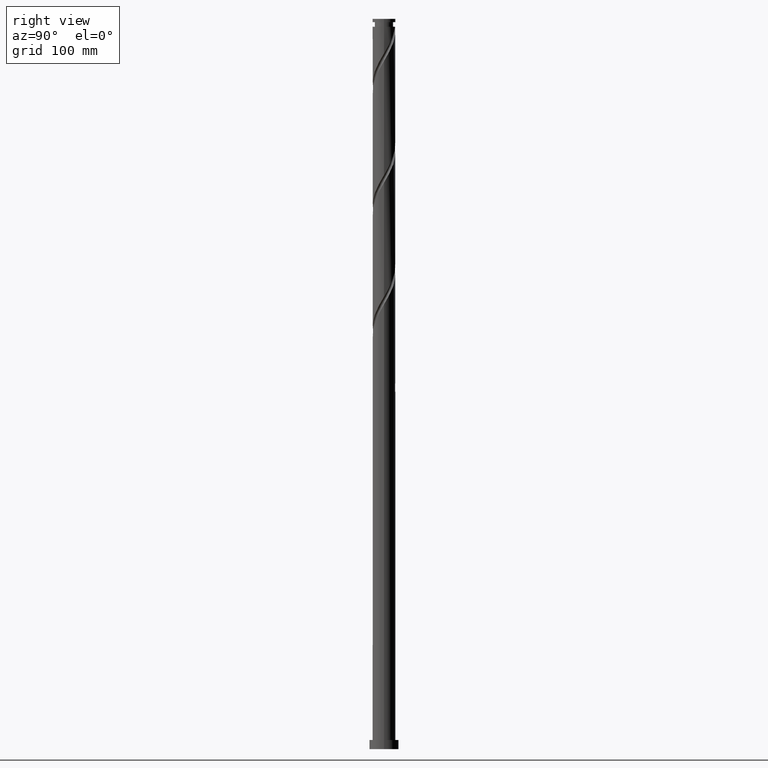
[diagram: clean part render]
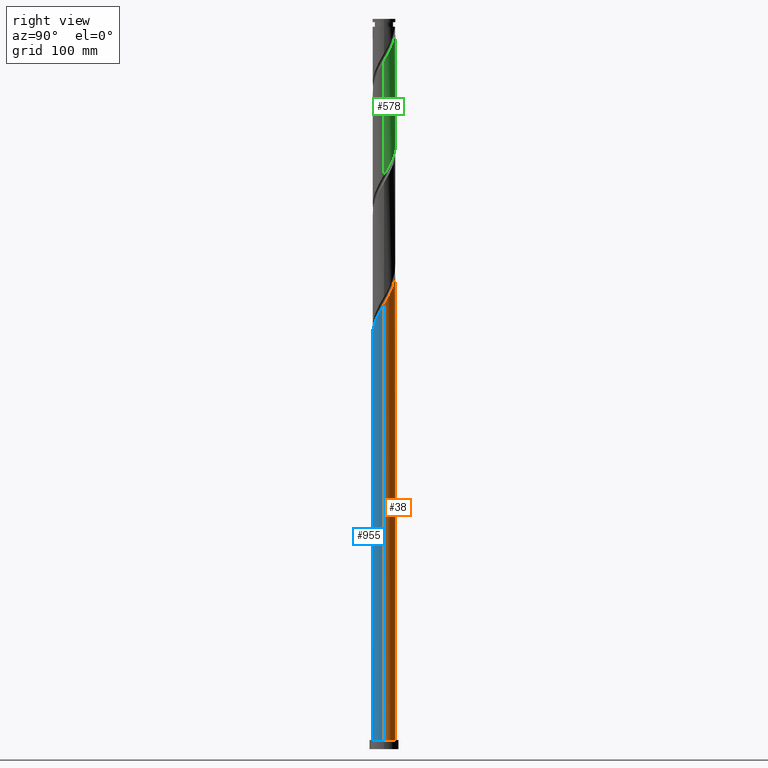
[diagram: same view with three faces highlighted in distinct colors, each labeled with its STEP entity id]
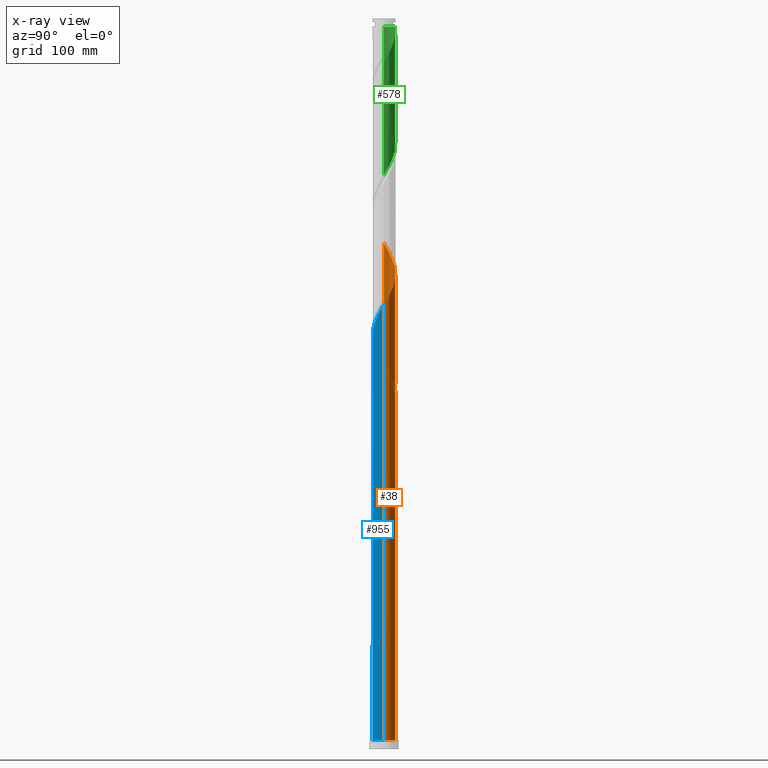
[diagram: x-ray of the same camera — body ghosted, the three highlighted faces saturated]
A machine part, right view with three faces highlighted in distinct colors.
The next image is the same camera in x-ray (body ghosted, the three faces saturated) — at least one of them is partly hidden behind the body in this view.
Their STEP definitions:

[orange] entity #38 — the highlighted cylindrical surface (edge-blend (fillet) strip) has radius 12.5 mm, axis along (-0, -0, -1).
#11 = CARTESIAN_POINT ( 'NONE',  ( 10.81552197002329763, 6.351954325404538082, 498.4268132737504402 ) ) ;
#38 = ADVANCED_FACE ( 'NONE', ( #799 ), #281, .T. ) ;
#52 = CARTESIAN_POINT ( 'NONE',  ( -11.23317305332023963, 5.580202719457611593, 410.7075150281363562 ) ) ;
#66 = EDGE_LOOP ( 'NONE', ( #1879, #779, #1131, #1332, #884, #1167, #101, #1785 ) ) ;
#79 = EDGE_CURVE ( 'NONE', #227, #789, #1815, .T. ) ;
#98 = CARTESIAN_POINT ( 'NONE',  ( -5.561143498045096223, 11.19480607219932011, 405.4443571333995919 ) ) ;
#101 = ORIENTED_EDGE ( 'NONE', *, *, #110, .F. ) ;
#110 = EDGE_CURVE ( 'NONE', #224, #789, #111, .T. ) ;
#111 =( BOUNDED_CURVE ( )  B_SPLINE_CURVE ( 2, ( #1496, #820, #1952, #1009, #633, #1922, #282, #590, #2062, #1345, #1698, #1358, #1890, #112, #98, #638, #477, #2093, #1215, #1763, #863, #1913, #1773 ),
 .UNSPECIFIED., .F., .T. ) 
 B_SPLINE_CURVE_WITH_KNOTS ( ( 3, 2, 2, 2, 2, 2, 2, 2, 2, 2, 2, 3 ),
 ( 0.9295295809515955465, 0.9342105263157894912, 0.9407894736842105088, 0.9473684210526315264, 0.9539473684210526550, 0.9605263157894736725, 0.9671052631578946901, 0.9736842105263158187, 0.9802631578947368363, 0.9868421052631578538, 0.9934210526315789824, 1.000000000000000000 ),
 .UNSPECIFIED. ) 
 CURVE ( )  GEOMETRIC_REPRESENTATION_ITEM ( )  RATIONAL_B_SPLINE_CURVE ( ( 0.9078162034606065411, 0.9068816855934138665, 0.9090909090909354839, 0.9059859027333625470, 0.9090909090909354839, 0.9059859027333625470, 0.9090909090909354839, 0.9059859027333625470, 0.9090909090909354839, 0.9059859027333625470, 0.9090909090909354839, 0.9059859027333625470, 0.9090909090909354839, 0.9059859027333625470, 0.9090909090909354839, 0.9059859027333625470, 0.9090909090909354839, 0.9059859027333625470, 0.9090909090909354839, 0.9059859027333625470, 0.9090909090909354839, 0.9059859027333625470, 0.9090909090909354839 ) ) 
 REPRESENTATION_ITEM ( '' )  );
#112 = CARTESIAN_POINT ( 'NONE',  ( -6.488771576365718552, 10.73399658402358092, 407.1987430983119225 ) ) ;
#119 = CARTESIAN_POINT ( 'NONE',  ( -9.487067962851774894, 8.139136408012332069, 538.7776904667329063 ) ) ;
#179 = LINE ( 'NONE', #370, #1905 ) ;
#205 = CARTESIAN_POINT ( 'NONE',  ( 12.50000000000001421, -6.419346399518662645E-15, 487.1573372133125304 ) ) ;
#211 = CARTESIAN_POINT ( 'NONE',  ( -2.487468592766559183, 12.25000000000001421, 391.4092694141013453 ) ) ;
#224 = VERTEX_POINT ( 'NONE', #780 ) ;
#227 = VERTEX_POINT ( 'NONE', #1390 ) ;
#250 = EDGE_CURVE ( 'NONE', #1052, #1152, #1002, .T. ) ;
#251 = CARTESIAN_POINT ( 'NONE',  ( -12.50000000000001421, -3.084272014280362778E-14, 420.4906705466459584 ) ) ;
#258 = CARTESIAN_POINT ( 'NONE',  ( -3.502532532788455555, 12.04388247588129524, 393.1636553790135622 ) ) ;
#281 = CYLINDRICAL_SURFACE ( 'NONE', #443, 12.50000000000000000 ) ;
#282 = CARTESIAN_POINT ( 'NONE',  ( -11.26451581851405770, 5.418549932818424786, 419.4794448526980091 ) ) ;
#306 = DIRECTION ( 'NONE',  ( 0.000000000000000000, 1.000000000000000000, -3.108624468950438313E-14 ) ) ;
#318 = DIRECTION ( 'NONE',  ( -4.930380657631319580E-30, -3.330669073875467728E-14, -1.000000000000000000 ) ) ;
#370 = CARTESIAN_POINT ( 'NONE',  ( 12.50000000000000000, 1.530808498934191127E-15, 800.0000000000000000 ) ) ;
#376 = CARTESIAN_POINT ( 'NONE',  ( -12.21742800420675756, 2.642811563851073853, 549.3040062562065486 ) ) ;
#377 = CARTESIAN_POINT ( 'NONE',  ( -12.50000000000000000, 0.000000000000000000, 10.00000000000000000 ) ) ;
#411 = CARTESIAN_POINT ( 'NONE',  ( 11.71350966700485685, 4.485145540232315042, 494.9180413439259496 ) ) ;
#412 = CARTESIAN_POINT ( 'NONE',  ( 12.50000000000001421, -6.419346399518662645E-15, 487.1573372133125304 ) ) ;
#429 = CARTESIAN_POINT ( 'NONE',  ( 0.000000000000000000, 0.000000000000000000, 800.0000000000000000 ) ) ;
#443 = AXIS2_PLACEMENT_3D ( 'NONE', #429, #1379, #810 ) ;
#448 = CARTESIAN_POINT ( 'NONE',  ( 2.651869041106374336, 12.25929972816162028, 515.9706729228734048 ) ) ;
#471 = CARTESIAN_POINT ( 'NONE',  ( 6.488771576365735427, 10.73399658402359158, 508.9531290632240825 ) ) ;
#477 = CARTESIAN_POINT ( 'NONE',  ( -3.642692230415416343, 11.95745764426833446, 401.9355852035751013 ) ) ;
#552 = CARTESIAN_POINT ( 'NONE',  ( 8.167030959368803522, 9.519582162300693540, 505.4443571333995919 ) ) ;
#581 = CARTESIAN_POINT ( 'NONE',  ( 12.50000000000001599, 0.7362330219179014090, 488.4078643274976912 ) ) ;
#590 = CARTESIAN_POINT ( 'NONE',  ( -10.81552197002327631, 6.351954325404532753, 417.7250588877856785 ) ) ;
#594 = CARTESIAN_POINT ( 'NONE',  ( 12.00274651105807422, 3.490569608428351067, 493.1636553790136759 ) ) ;
#615 = CARTESIAN_POINT ( 'NONE',  ( -7.223397906210958119, 10.25404124843610632, 400.1811992386627708 ) ) ;
#626 = CARTESIAN_POINT ( 'NONE',  ( -12.43641761389966227, 1.630446616350346600, 417.7250588877855648 ) ) ;
#633 = CARTESIAN_POINT ( 'NONE',  ( -12.00274651105806001, 3.490569608428349291, 422.9882167825224428 ) ) ;
#635 = VERTEX_POINT ( 'NONE', #377 ) ;
#638 = CARTESIAN_POINT ( 'NONE',  ( -4.633515419724471229, 11.65561556037505220, 403.6899711684872614 ) ) ;
#676 = CARTESIAN_POINT ( 'NONE',  ( -10.16149603392872436, 7.353015543879450888, 540.5320764316451232 ) ) ;
#693 = LINE ( 'NONE', #1406, #1644 ) ;
#713 = CARTESIAN_POINT ( 'NONE',  ( -11.61580572391704358, 4.617689615404707126, 545.7952343263820012 ) ) ;
#720 = DIRECTION ( 'NONE',  ( -0.000000000000000000, -0.000000000000000000, -1.000000000000000000 ) ) ;
#779 = ORIENTED_EDGE ( 'NONE', *, *, #1667, .T. ) ;
#780 = CARTESIAN_POINT ( 'NONE',  ( -12.49999999999999645, 3.445546858160272951E-14, 428.9945349482235883 ) ) ;
#789 = VERTEX_POINT ( 'NONE', #1469 ) ;
#792 = CARTESIAN_POINT ( 'NONE',  ( 9.622515027661066256, 8.045498354888833248, 501.9355852035749308 ) ) ;
#799 = FACE_OUTER_BOUND ( 'NONE', #66, .T. ) ;
#804 = CARTESIAN_POINT ( 'NONE',  ( -5.437120455758652326, 11.30312170976022479, 530.0057606421714809 ) ) ;
#810 = DIRECTION ( 'NONE',  ( -1.000000000000000000, 0.000000000000000000, 0.000000000000000000 ) ) ;
#812 = CARTESIAN_POINT ( 'NONE',  ( -9.487067962851774894, 8.139136408012332069, 405.4443571333995919 ) ) ;
#820 = CARTESIAN_POINT ( 'NONE',  ( -12.50000000000000000, 0.7362330219179232804, 427.7440078340383138 ) ) ;
#852 = AXIS2_PLACEMENT_3D ( 'NONE', #1014, #1787, #889 ) ;
#863 = CARTESIAN_POINT ( 'NONE',  ( 0.4372590323955704017, 12.49234984054595188, 394.9180413439260064 ) ) ;
#884 = ORIENTED_EDGE ( 'NONE', *, *, #1834, .F. ) ;
#889 = DIRECTION ( 'NONE',  ( 1.000000000000000000, 0.000000000000000000, 0.000000000000000000 ) ) ;
#911 = CARTESIAN_POINT ( 'NONE',  ( -11.23317305332023963, 5.580202719457611593, 544.0408483614696706 ) ) ;
#937 = CARTESIAN_POINT ( 'NONE',  ( -12.50000000000001421, -3.084272014280362778E-14, 553.8240038799792728 ) ) ;
#947 = CARTESIAN_POINT ( 'NONE',  ( 12.29198335511129514, 2.495993676624377766, 491.4092694141012885 ) ) ;
#953 = CARTESIAN_POINT ( 'NONE',  ( -8.018018898992890442, 9.589649260290663335, 401.9355852035751013 ) ) ;
#968 = CARTESIAN_POINT ( 'NONE',  ( 10.21901849884217839, 7.198726340146690994, 500.1811992386627708 ) ) ;
#969 = CARTESIAN_POINT ( 'NONE',  ( -12.50000000000001421, -3.084272014280362778E-14, 553.8240038799792728 ) ) ;
#985 = CARTESIAN_POINT ( 'NONE',  ( -5.437120455758652326, 11.30312170976022479, 396.6724273088382233 ) ) ;
#988 = CARTESIAN_POINT ( 'NONE',  ( -7.223397906210958119, 10.25404124843610632, 533.5145325719960283 ) ) ;
#1002 =( BOUNDED_CURVE ( )  B_SPLINE_CURVE ( 2, ( #205, #581, #2229, #947, #594, #411, #1866, #11, #968, #792, #2009, #552, #1287, #471, #1543, #1205, #1351, #448, #1005, #2278, #2100, #2300, #2066, #1324, #1880, #804, #1164, #988, #2135, #1739, #119, #676, #1220, #911, #713, #2194, #376, #1447, #2010, #1822, #937 ),
 .UNSPECIFIED., .F., .T. ) 
 B_SPLINE_CURVE_WITH_KNOTS ( ( 3, 2, 2, 2, 2, 2, 2, 2, 2, 2, 2, 2, 2, 2, 2, 2, 2, 2, 2, 2, 3 ),
 ( 0.1795295809515954633, 0.1842105263157894912, 0.1907894736842105088, 0.1973684210526315264, 0.2039473684210526550, 0.2105263157894736725, 0.2171052631578946901, 0.2236842105263158187, 0.2302631578947368363, 0.2368421052631578538, 0.2434210526315789824, 0.2500000000000000000, 0.2565789473684210176, 0.2631578947368421462, 0.2697368421052631637, 0.2763157894736841813, 0.2828947368421053099, 0.2894736842105263275, 0.2960526315789473450, 0.3026315789473684736, 0.3045295809515958796 ),
 .UNSPECIFIED. ) 
 CURVE ( )  GEOMETRIC_REPRESENTATION_ITEM ( )  RATIONAL_B_SPLINE_CURVE ( ( 0.9078162034606127584, 0.9068816855934198617, 0.9090909090909415902, 0.9059859027333685422, 0.9090909090909415902, 0.9059859027333685422, 0.9090909090909415902, 0.9059859027333685422, 0.9090909090909415902, 0.9059859027333685422, 0.9090909090909415902, 0.9059859027333685422, 0.9090909090909415902, 0.9059859027333685422, 0.9090909090909415902, 0.9059859027333685422, 0.9090909090909415902, 0.9059859027333685422, 0.9090909090909415902, 0.9059859027333685422, 0.9090909090909415902, 0.9059859027333685422, 0.9090909090909415902, 0.9059859027333685422, 0.9090909090909415902, 0.9059859027333685422, 0.9090909090909415902, 0.9059859027333685422, 0.9090909090909415902, 0.9059859027333685422, 0.9090909090909415902, 0.9059859027333685422, 0.9090909090909415902, 0.9059859027333685422, 0.9090909090909415902, 0.9059859027333685422, 0.9090909090909415902, 0.9059859027333685422, 0.9090909090909415902, 0.9081951262308900485, 0.9078162034606125363 ) ) 
 REPRESENTATION_ITEM ( '' )  );
#1005 = CARTESIAN_POINT ( 'NONE',  ( 1.624877814529951836, 12.39394094256741319, 517.7250588877855080 ) ) ;
#1009 = CARTESIAN_POINT ( 'NONE',  ( -12.29198335511128093, 2.495993676624379098, 424.7426027474347165 ) ) ;
#1014 = CARTESIAN_POINT ( 'NONE',  ( 0.000000000000000000, 0.000000000000000000, 10.00000000000000000 ) ) ;
#1040 = CIRCLE ( 'NONE', #852, 12.50000000000000000 ) ;
#1047 = VERTEX_POINT ( 'NONE', #251 ) ;
#1052 = VERTEX_POINT ( 'NONE', #412 ) ;
#1087 = CARTESIAN_POINT ( 'NONE',  ( -12.50000000000000000, 0.000000000000000000, 800.0000000000000000 ) ) ;
#1097 = DIRECTION ( 'NONE',  ( -0.000000000000000000, -0.000000000000000000, -1.000000000000000000 ) ) ;
#1131 = ORIENTED_EDGE ( 'NONE', *, *, #1251, .T. ) ;
#1152 = VERTEX_POINT ( 'NONE', #969 ) ;
#1164 = CARTESIAN_POINT ( 'NONE',  ( -6.330259180984804779, 10.77858147909816822, 531.7601466070836977 ) ) ;
#1167 = ORIENTED_EDGE ( 'NONE', *, *, #79, .T. ) ;
#1172 = CARTESIAN_POINT ( 'NONE',  ( -6.330259180984804779, 10.77858147909816822, 398.4268132737504402 ) ) ;
#1205 = CARTESIAN_POINT ( 'NONE',  ( 4.633515419724479223, 11.65561556037507174, 512.4619009930487437 ) ) ;
#1211 = AXIS2_PLACEMENT_3D ( 'NONE', #1951, #318, #306 ) ;
#1215 = CARTESIAN_POINT ( 'NONE',  ( -1.624877814529944731, 12.39394094256739898, 398.4268132737505539 ) ) ;
#1220 = CARTESIAN_POINT ( 'NONE',  ( -10.69733454362448022, 6.466609131668532129, 542.2864623965575674 ) ) ;
#1251 = EDGE_CURVE ( 'NONE', #1562, #635, #1040, .T. ) ;
#1287 = CARTESIAN_POINT ( 'NONE',  ( 7.327901267867273027, 10.12678937316213990, 507.1987430983119225 ) ) ;
#1310 = CARTESIAN_POINT ( 'NONE',  ( -10.16149603392872436, 7.353015543879450888, 407.1987430983119225 ) ) ;
#1313 = EDGE_CURVE ( 'NONE', #1047, #635, #1586, .T. ) ;
#1324 = CARTESIAN_POINT ( 'NONE',  ( -3.502532532788455555, 12.04388247588129524, 526.4969887123469334 ) ) ;
#1331 = CARTESIAN_POINT ( 'NONE',  ( -12.48579069699954758, 0.5958445021311573608, 419.4794448526978954 ) ) ;
#1332 = ORIENTED_EDGE ( 'NONE', *, *, #1313, .F. ) ;
#1345 = CARTESIAN_POINT ( 'NONE',  ( -9.622515027661046716, 8.045498354888831471, 414.2162869579610174 ) ) ;
#1351 = CARTESIAN_POINT ( 'NONE',  ( 3.642692230415432775, 11.95745764426834334, 514.2162869579610742 ) ) ;
#1357 = CARTESIAN_POINT ( 'NONE',  ( -12.50000000000001599, 0.2980916780645564423, 419.9843475282057739 ) ) ;
#1358 = CARTESIAN_POINT ( 'NONE',  ( -8.167030959368789311, 9.519582162300682882, 410.7075150281364131 ) ) ;
#1379 = DIRECTION ( 'NONE',  ( -0.000000000000000000, -0.000000000000000000, -1.000000000000000000 ) ) ;
#1390 = CARTESIAN_POINT ( 'NONE',  ( -2.487468592766559183, 12.25000000000001421, 391.4092694141013453 ) ) ;
#1406 = CARTESIAN_POINT ( 'NONE',  ( -12.50000000000000000, 0.000000000000000000, 800.0000000000000000 ) ) ;
#1447 = CARTESIAN_POINT ( 'NONE',  ( -12.43641761389966227, 1.630446616350346600, 551.0583922211189929 ) ) ;
#1469 = CARTESIAN_POINT ( 'NONE',  ( 2.487468592766563180, 12.25000000000000000, 391.4092694141013453 ) ) ;
#1496 = CARTESIAN_POINT ( 'NONE',  ( -12.49999999999999645, 3.445546858160273582E-14, 428.9945349482236452 ) ) ;
#1516 = CARTESIAN_POINT ( 'NONE',  ( -8.812639891774825429, 8.925257272145215026, 403.6899711684872614 ) ) ;
#1539 = CARTESIAN_POINT ( 'NONE',  ( -10.69733454362448022, 6.466609131668532129, 408.9531290632241394 ) ) ;
#1543 = CARTESIAN_POINT ( 'NONE',  ( 5.561143498045108657, 11.19480607219933255, 510.7075150281364699 ) ) ;
#1562 = VERTEX_POINT ( 'NONE', #2180 ) ;
#1586 = LINE ( 'NONE', #1087, #1832 ) ;
#1644 = VECTOR ( 'NONE', #2283, 1000.000000000000000 ) ;
#1667 = EDGE_CURVE ( 'NONE', #1052, #1562, #179, .T. ) ;
#1686 = CARTESIAN_POINT ( 'NONE',  ( -4.469826494273553052, 11.67350209282075824, 394.9180413439258928 ) ) ;
#1698 = CARTESIAN_POINT ( 'NONE',  ( -8.894772993514918014, 8.782540258594758953, 412.4619009930488005 ) ) ;
#1724 =( BOUNDED_CURVE ( )  B_SPLINE_CURVE ( 2, ( #211, #258, #1686, #985, #1172, #615, #953, #1516, #812, #1310, #1539, #52, #2051, #2238, #2042, #626, #1331, #1357, #2061 ),
 .UNSPECIFIED., .F., .T. ) 
 B_SPLINE_CURVE_WITH_KNOTS ( ( 3, 2, 2, 2, 2, 2, 2, 2, 2, 3 ),
 ( 0.000000000000000000, 0.006578947368421018439, 0.01315789473684214617, 0.01973684210526316374, 0.02631578947368417784, 0.03289473684210530990, 0.03947368421052632748, 0.04605263157894734505, 0.05263157894736847364, 0.05452958095159583796 ),
 .UNSPECIFIED. ) 
 CURVE ( )  GEOMETRIC_REPRESENTATION_ITEM ( )  RATIONAL_B_SPLINE_CURVE ( ( 0.9090909090909415902, 0.9059859027333685422, 0.9090909090909415902, 0.9059859027333685422, 0.9090909090909415902, 0.9059859027333685422, 0.9090909090909415902, 0.9059859027333685422, 0.9090909090909415902, 0.9059859027333685422, 0.9090909090909415902, 0.9059859027333685422, 0.9090909090909415902, 0.9059859027333685422, 0.9090909090909415902, 0.9059859027333685422, 0.9090909090909415902, 0.9081951262308900485, 0.9078162034606125363 ) ) 
 REPRESENTATION_ITEM ( '' )  );
#1739 = CARTESIAN_POINT ( 'NONE',  ( -8.812639891774825429, 8.925257272145215026, 537.0233045018206894 ) ) ;
#1763 = CARTESIAN_POINT ( 'NONE',  ( -0.5978865879535263383, 12.52858215697318300, 396.6724273088382233 ) ) ;
#1773 = CARTESIAN_POINT ( 'NONE',  ( 2.487468592766562736, 12.25000000000000000, 391.4092694141013453 ) ) ;
#1785 = ORIENTED_EDGE ( 'NONE', *, *, #1987, .F. ) ;
#1787 = DIRECTION ( 'NONE',  ( 0.000000000000000000, 0.000000000000000000, 1.000000000000000000 ) ) ;
#1815 = CIRCLE ( 'NONE', #1211, 12.50000000000000000 ) ;
#1822 = CARTESIAN_POINT ( 'NONE',  ( -12.50000000000001599, 0.2980916780645498920, 553.3176808615392019 ) ) ;
#1832 = VECTOR ( 'NONE', #720, 1000.000000000000000 ) ;
#1834 = EDGE_CURVE ( 'NONE', #227, #1047, #1724, .T. ) ;
#1866 = CARTESIAN_POINT ( 'NONE',  ( 11.26451581851407724, 5.418549932818425674, 496.6724273088382802 ) ) ;
#1879 = ORIENTED_EDGE ( 'NONE', *, *, #250, .F. ) ;
#1880 = CARTESIAN_POINT ( 'NONE',  ( -4.469826494273553052, 11.67350209282075824, 528.2513746772592640 ) ) ;
#1890 = CARTESIAN_POINT ( 'NONE',  ( -7.327901267867254376, 10.12678937316213101, 408.9531290632241962 ) ) ;
#1905 = VECTOR ( 'NONE', #1097, 1000.000000000000000 ) ;
#1913 = CARTESIAN_POINT ( 'NONE',  ( 1.472404652744667475, 12.45611752411871898, 393.1636553790136759 ) ) ;
#1922 = CARTESIAN_POINT ( 'NONE',  ( -11.71350966700483731, 4.485145540232317707, 421.2338308176102259 ) ) ;
#1951 = CARTESIAN_POINT ( 'NONE',  ( 0.000000000000000000, 0.000000000000000000, 391.4092694141018001 ) ) ;
#1952 = CARTESIAN_POINT ( 'NONE',  ( -12.41357356760535069, 1.467375644356207154, 426.4969887123471040 ) ) ;
#1987 = EDGE_CURVE ( 'NONE', #1152, #224, #693, .T. ) ;
#2009 = CARTESIAN_POINT ( 'NONE',  ( 8.894772993514934001, 8.782540258594764282, 503.6899711684873751 ) ) ;
#2010 = CARTESIAN_POINT ( 'NONE',  ( -12.48579069699954758, 0.5958445021311573608, 552.8127781860312098 ) ) ;
#2042 = CARTESIAN_POINT ( 'NONE',  ( -12.21742800420675756, 2.642811563851073853, 415.9706729228732911 ) ) ;
#2051 = CARTESIAN_POINT ( 'NONE',  ( -11.61580572391704358, 4.617689615404707126, 412.4619009930488005 ) ) ;
#2061 = CARTESIAN_POINT ( 'NONE',  ( -12.50000000000001421, -3.084272014280362778E-14, 420.4906705466459584 ) ) ;
#2062 = CARTESIAN_POINT ( 'NONE',  ( -10.21901849884216240, 7.198726340146682112, 415.9706729228734616 ) ) ;
#2066 = CARTESIAN_POINT ( 'NONE',  ( -2.487468592766559183, 12.25000000000001599, 524.7426027474347165 ) ) ;
#2093 = CARTESIAN_POINT ( 'NONE',  ( -2.651869041106362346, 12.25929972816160607, 400.1811992386627708 ) ) ;
#2100 = CARTESIAN_POINT ( 'NONE',  ( -0.4372590323955601876, 12.49234984054596787, 521.2338308176100554 ) ) ;
#2135 = CARTESIAN_POINT ( 'NONE',  ( -8.018018898992890442, 9.589649260290663335, 535.2689185369083589 ) ) ;
#2180 = CARTESIAN_POINT ( 'NONE',  ( 12.50000000000000000, 1.530808498934191127E-15, 10.00000000000000000 ) ) ;
#2194 = CARTESIAN_POINT ( 'NONE',  ( -11.99843839451384930, 3.655176511351802660, 547.5496202912942181 ) ) ;
#2229 = CARTESIAN_POINT ( 'NONE',  ( 12.41357356760536668, 1.467375644356201381, 489.6548834491891284 ) ) ;
#2238 = CARTESIAN_POINT ( 'NONE',  ( -11.99843839451384930, 3.655176511351802660, 414.2162869579609605 ) ) ;
#2278 = CARTESIAN_POINT ( 'NONE',  ( 0.5978865879535303351, 12.52858215697320077, 519.4794448526978385 ) ) ;
#2283 = DIRECTION ( 'NONE',  ( -0.000000000000000000, -0.000000000000000000, -1.000000000000000000 ) ) ;
#2300 = CARTESIAN_POINT ( 'NONE',  ( -1.472404652744661924, 12.45611752411873674, 522.9882167825223860 ) ) ;

[blue] entity #955 — the highlighted cylindrical surface (edge-blend (fillet) strip) has radius 12.5 mm, axis along (-0, -0, -1).
#34 = ORIENTED_EDGE ( 'NONE', *, *, #1313, .T. ) ;
#81 = CARTESIAN_POINT ( 'NONE',  ( -11.71350966700485330, -4.485145540232320371, 428.2513746772592071 ) ) ;
#179 = LINE ( 'NONE', #370, #1905 ) ;
#251 = CARTESIAN_POINT ( 'NONE',  ( -12.50000000000001421, -3.084272014280362778E-14, 420.4906705466459584 ) ) ;
#254 = CARTESIAN_POINT ( 'NONE',  ( -12.29198335511129514, -2.495993676624378654, 424.7426027474346597 ) ) ;
#316 = CARTESIAN_POINT ( 'NONE',  ( 4.469826494273553052, -11.67350209282075824, 461.5847080105925215 ) ) ;
#370 = CARTESIAN_POINT ( 'NONE',  ( 12.50000000000000000, 1.530808498934191127E-15, 800.0000000000000000 ) ) ;
#377 = CARTESIAN_POINT ( 'NONE',  ( -12.50000000000000000, 0.000000000000000000, 10.00000000000000000 ) ) ;
#405 = CARTESIAN_POINT ( 'NONE',  ( -4.633515419724479223, -11.65561556037507174, 445.7952343263820012 ) ) ;
#412 = CARTESIAN_POINT ( 'NONE',  ( 12.50000000000001421, -6.419346399518662645E-15, 487.1573372133125304 ) ) ;
#422 = ORIENTED_EDGE ( 'NONE', *, *, #2253, .T. ) ;
#451 = CARTESIAN_POINT ( 'NONE',  ( -6.488771576365729210, -10.73399658402359158, 442.2864623965573969 ) ) ;
#511 = CARTESIAN_POINT ( 'NONE',  ( 11.61580572391704358, -4.617689615404707126, 479.1285676597153724 ) ) ;
#530 = EDGE_CURVE ( 'NONE', #1047, #1052, #1474, .T. ) ;
#568 = FACE_OUTER_BOUND ( 'NONE', #1464, .T. ) ;
#586 = CARTESIAN_POINT ( 'NONE',  ( -5.561143498045107769, -11.19480607219933255, 444.0408483614697843 ) ) ;
#635 = VERTEX_POINT ( 'NONE', #377 ) ;
#642 = ORIENTED_EDGE ( 'NONE', *, *, #530, .F. ) ;
#656 = CIRCLE ( 'NONE', #1949, 12.50000000000000000 ) ;
#663 = CARTESIAN_POINT ( 'NONE',  ( 6.330259180984804779, -10.77858147909816822, 465.0934799404172395 ) ) ;
#703 = CARTESIAN_POINT ( 'NONE',  ( 2.487468592766559183, -12.25000000000001599, 458.0759360807682015 ) ) ;
#720 = DIRECTION ( 'NONE',  ( -0.000000000000000000, -0.000000000000000000, -1.000000000000000000 ) ) ;
#738 = ORIENTED_EDGE ( 'NONE', *, *, #1667, .F. ) ;
#749 = DIRECTION ( 'NONE',  ( 1.000000000000000000, 0.000000000000000000, 0.000000000000000000 ) ) ;
#758 = CYLINDRICAL_SURFACE ( 'NONE', #1714, 12.50000000000000000 ) ;
#808 = CARTESIAN_POINT ( 'NONE',  ( -12.00274651105807422, -3.490569608428349735, 426.4969887123469903 ) ) ;
#818 = CARTESIAN_POINT ( 'NONE',  ( -10.81552197002329585, -6.351954325404538082, 431.7601466070837546 ) ) ;
#844 = CARTESIAN_POINT ( 'NONE',  ( 10.16149603392872258, -7.353015543879452665, 473.8654097649784944 ) ) ;
#857 = CARTESIAN_POINT ( 'NONE',  ( 8.812639891774823653, -8.925257272145218579, 470.3566378351539470 ) ) ;
#955 = ADVANCED_FACE ( 'NONE', ( #568 ), #758, .T. ) ;
#1007 = CARTESIAN_POINT ( 'NONE',  ( -1.624877814529950282, -12.39394094256741319, 451.0583922211190497 ) ) ;
#1032 = CARTESIAN_POINT ( 'NONE',  ( 0.4372590323955675151, -12.49234984054596787, 454.5671641509435403 ) ) ;
#1046 = CARTESIAN_POINT ( 'NONE',  ( 8.018018898992890442, -9.589649260290663335, 468.6022518702417301 ) ) ;
#1047 = VERTEX_POINT ( 'NONE', #251 ) ;
#1052 = VERTEX_POINT ( 'NONE', #412 ) ;
#1087 = CARTESIAN_POINT ( 'NONE',  ( -12.50000000000000000, 0.000000000000000000, 800.0000000000000000 ) ) ;
#1097 = DIRECTION ( 'NONE',  ( -0.000000000000000000, -0.000000000000000000, -1.000000000000000000 ) ) ;
#1157 = CARTESIAN_POINT ( 'NONE',  ( -12.50000000000000711, -0.7362330219179661350, 421.7411976608312330 ) ) ;
#1193 = CARTESIAN_POINT ( 'NONE',  ( 3.502532532788452890, -12.04388247588129524, 459.8303220456801910 ) ) ;
#1234 = CARTESIAN_POINT ( 'NONE',  ( 11.99843839451384575, -3.655176511351809765, 480.8829536246276461 ) ) ;
#1244 = CARTESIAN_POINT ( 'NONE',  ( 12.48579069699954758, -0.5958445021311560286, 486.1461115193645242 ) ) ;
#1301 = DIRECTION ( 'NONE',  ( -1.000000000000000000, 0.000000000000000000, 0.000000000000000000 ) ) ;
#1313 = EDGE_CURVE ( 'NONE', #1047, #635, #1586, .T. ) ;
#1328 = CARTESIAN_POINT ( 'NONE',  ( -12.50000000000001421, -3.084272014280362778E-14, 420.4906705466459584 ) ) ;
#1364 = CARTESIAN_POINT ( 'NONE',  ( -8.167030959368799969, -9.519582162300695316, 438.7776904667329632 ) ) ;
#1377 = CARTESIAN_POINT ( 'NONE',  ( 12.43641761389966227, -1.630446616350347044, 484.3917255544521936 ) ) ;
#1392 = CARTESIAN_POINT ( 'NONE',  ( -2.651869041106372560, -12.25929972816161850, 449.3040062562066623 ) ) ;
#1428 = CARTESIAN_POINT ( 'NONE',  ( -3.642692230415424337, -11.95745764426834690, 447.5496202912943318 ) ) ;
#1464 = EDGE_LOOP ( 'NONE', ( #738, #642, #34, #422 ) ) ;
#1474 =( BOUNDED_CURVE ( )  B_SPLINE_CURVE ( 2, ( #1328, #1157, #1500, #254, #808, #81, #1534, #818, #2078, #1545, #2268, #1364, #2088, #451, #586, #405, #1428, #1392, #1007, #1566, #1032, #2152, #703, #1193, #316, #2330, #663, #2140, #1046, #857, #1726, #844, #2280, #2290, #511, #1234, #2114, #1377, #1244, #1919, #1977 ),
 .UNSPECIFIED., .F., .T. ) 
 B_SPLINE_CURVE_WITH_KNOTS ( ( 3, 2, 2, 2, 2, 2, 2, 2, 2, 2, 2, 2, 2, 2, 2, 2, 2, 2, 2, 2, 3 ),
 ( 0.05452958095159583796, 0.05921052631578949121, 0.06578947368421050879, 0.07236842105263152636, 0.07894736842105265495, 0.08552631578947367252, 0.09210526315789469010, 0.09868421052631581869, 0.1052631578947368363, 0.1118421052631578538, 0.1184210526315789824, 0.1250000000000000000, 0.1315789473684210176, 0.1381578947368421462, 0.1447368421052631637, 0.1513157894736841813, 0.1578947368421053099, 0.1644736842105263275, 0.1710526315789473450, 0.1776315789473684736, 0.1795295809515954633 ),
 .UNSPECIFIED. ) 
 CURVE ( )  GEOMETRIC_REPRESENTATION_ITEM ( )  RATIONAL_B_SPLINE_CURVE ( ( 0.9078162034606125363, 0.9068816855934199728, 0.9090909090909415902, 0.9059859027333685422, 0.9090909090909415902, 0.9059859027333685422, 0.9090909090909415902, 0.9059859027333685422, 0.9090909090909415902, 0.9059859027333685422, 0.9090909090909415902, 0.9059859027333685422, 0.9090909090909415902, 0.9059859027333685422, 0.9090909090909415902, 0.9059859027333685422, 0.9090909090909415902, 0.9059859027333685422, 0.9090909090909415902, 0.9059859027333685422, 0.9090909090909415902, 0.9059859027333685422, 0.9090909090909415902, 0.9059859027333685422, 0.9090909090909415902, 0.9059859027333685422, 0.9090909090909415902, 0.9059859027333685422, 0.9090909090909415902, 0.9059859027333685422, 0.9090909090909415902, 0.9059859027333685422, 0.9090909090909415902, 0.9059859027333685422, 0.9090909090909415902, 0.9059859027333685422, 0.9090909090909415902, 0.9059859027333685422, 0.9090909090909415902, 0.9081951262308902706, 0.9078162034606127584 ) ) 
 REPRESENTATION_ITEM ( '' )  );
#1500 = CARTESIAN_POINT ( 'NONE',  ( -12.41357356760536668, -1.467375644356205155, 422.9882167825224428 ) ) ;
#1534 = CARTESIAN_POINT ( 'NONE',  ( -11.26451581851407546, -5.418549932818430115, 430.0057606421714240 ) ) ;
#1545 = CARTESIAN_POINT ( 'NONE',  ( -9.622515027661060927, -8.045498354888838577, 435.2689185369084157 ) ) ;
#1562 = VERTEX_POINT ( 'NONE', #2180 ) ;
#1566 = CARTESIAN_POINT ( 'NONE',  ( -0.5978865879535343320, -12.52858215697320077, 452.8127781860312098 ) ) ;
#1586 = LINE ( 'NONE', #1087, #1832 ) ;
#1667 = EDGE_CURVE ( 'NONE', #1052, #1562, #179, .T. ) ;
#1714 = AXIS2_PLACEMENT_3D ( 'NONE', #1790, #1823, #1301 ) ;
#1726 = CARTESIAN_POINT ( 'NONE',  ( 9.487067962851774894, -8.139136408012335622, 472.1110238000663912 ) ) ;
#1790 = CARTESIAN_POINT ( 'NONE',  ( 0.000000000000000000, 0.000000000000000000, 800.0000000000000000 ) ) ;
#1823 = DIRECTION ( 'NONE',  ( -0.000000000000000000, -0.000000000000000000, -1.000000000000000000 ) ) ;
#1826 = CARTESIAN_POINT ( 'NONE',  ( 0.000000000000000000, 0.000000000000000000, 10.00000000000000000 ) ) ;
#1832 = VECTOR ( 'NONE', #720, 1000.000000000000000 ) ;
#1905 = VECTOR ( 'NONE', #1097, 1000.000000000000000 ) ;
#1919 = CARTESIAN_POINT ( 'NONE',  ( 12.50000000000001421, -0.2980916780646162279, 486.6510141948723458 ) ) ;
#1949 = AXIS2_PLACEMENT_3D ( 'NONE', #1826, #2165, #749 ) ;
#1977 = CARTESIAN_POINT ( 'NONE',  ( 12.50000000000001421, -6.419346399518662645E-15, 487.1573372133125304 ) ) ;
#2078 = CARTESIAN_POINT ( 'NONE',  ( -10.21901849884218016, -7.198726340146689218, 433.5145325719960852 ) ) ;
#2088 = CARTESIAN_POINT ( 'NONE',  ( -7.327901267867267698, -10.12678937316214522, 440.5320764316453506 ) ) ;
#2114 = CARTESIAN_POINT ( 'NONE',  ( 12.21742800420675579, -2.642811563851077850, 482.6373395895400336 ) ) ;
#2140 = CARTESIAN_POINT ( 'NONE',  ( 7.223397906210958119, -10.25404124843610632, 466.8478659053294564 ) ) ;
#2152 = CARTESIAN_POINT ( 'NONE',  ( 1.472404652744663478, -12.45611752411873674, 456.3215501158556435 ) ) ;
#2165 = DIRECTION ( 'NONE',  ( 0.000000000000000000, 0.000000000000000000, 1.000000000000000000 ) ) ;
#2180 = CARTESIAN_POINT ( 'NONE',  ( 12.50000000000000000, 1.530808498934191127E-15, 10.00000000000000000 ) ) ;
#2253 = EDGE_CURVE ( 'NONE', #635, #1562, #656, .T. ) ;
#2268 = CARTESIAN_POINT ( 'NONE',  ( -8.894772993514934001, -8.782540258594766058, 437.0233045018207463 ) ) ;
#2280 = CARTESIAN_POINT ( 'NONE',  ( 10.69733454362448022, -6.466609131668537458, 475.6197957298908250 ) ) ;
#2290 = CARTESIAN_POINT ( 'NONE',  ( 11.23317305332023786, -5.580202719457613370, 477.3741816948030419 ) ) ;
#2330 = CARTESIAN_POINT ( 'NONE',  ( 5.437120455758649662, -11.30312170976022479, 463.3390939755049089 ) ) ;

[green] entity #578 — the highlighted cylindrical surface (edge-blend (fillet) strip) has radius 12.5 mm, axis along (-0, -0, -1).
#2 = VECTOR ( 'NONE', #235, 1000.000000000000000 ) ;
#14 = CARTESIAN_POINT ( 'NONE',  ( 12.50000000000001421, 5.971485022808058898E-15, 753.8240038799792728 ) ) ;
#19 = CARTESIAN_POINT ( 'NONE',  ( -8.894772993514918014, 8.782540258594758953, 679.1285676597154861 ) ) ;
#41 = AXIS2_PLACEMENT_3D ( 'NONE', #1970, #668, #1050 ) ;
#44 = DIRECTION ( 'NONE',  ( -0.000000000000000000, -0.000000000000000000, -1.000000000000000000 ) ) ;
#49 = CARTESIAN_POINT ( 'NONE',  ( 11.99843839451383509, 3.655176511351786228, 635.2689185369085862 ) ) ;
#56 = CARTESIAN_POINT ( 'NONE',  ( -12.50000000000000000, 0.000000000000000000, 800.0000000000000000 ) ) ;
#60 = CARTESIAN_POINT ( 'NONE',  ( 11.61580572391703114, 4.617689615404693804, 637.0233045018208031 ) ) ;
#70 = CARTESIAN_POINT ( 'NONE',  ( 10.69733454362447134, 6.466609131668515253, 640.5320764316452369 ) ) ;
#131 = CARTESIAN_POINT ( 'NONE',  ( 11.26451581851407724, 5.418549932818425674, 763.3390939755048521 ) ) ;
#153 = CIRCLE ( 'NONE', #41, 12.49999999999991829 ) ;
#162 = CARTESIAN_POINT ( 'NONE',  ( 0.000000000000000000, 0.000000000000000000, 800.0000000000000000 ) ) ;
#212 = EDGE_CURVE ( 'NONE', #1163, #1080, #1068, .T. ) ;
#228 = CARTESIAN_POINT ( 'NONE',  ( -12.50000000000000000, 1.197282747073023809E-14, 695.6612016148903876 ) ) ;
#232 = CARTESIAN_POINT ( 'NONE',  ( 3.502532532788457775, 12.04388247588127570, 656.3215501158558709 ) ) ;
#235 = DIRECTION ( 'NONE',  ( -0.000000000000000000, -0.000000000000000000, -1.000000000000000000 ) ) ;
#244 = CARTESIAN_POINT ( 'NONE',  ( 7.223397906210956343, 10.25404124843609033, 649.3040062562065486 ) ) ;
#246 = CARTESIAN_POINT ( 'NONE',  ( -10.21901849884216240, 7.198726340146682112, 682.6373395895400336 ) ) ;
#266 = CARTESIAN_POINT ( 'NONE',  ( 12.48579069699953159, 0.5958445021311489231, 630.0057606421718219 ) ) ;
#274 = CARTESIAN_POINT ( 'NONE',  ( -12.50000000000000000, 1.197282747073023809E-14, 695.6612016148903876 ) ) ;
#296 = CARTESIAN_POINT ( 'NONE',  ( 12.29198335511129514, 2.495993676624377766, 758.0759360807678604 ) ) ;
#320 = CARTESIAN_POINT ( 'NONE',  ( 5.561143498045108657, 11.19480607219933255, 777.3741816948031556 ) ) ;
#340 = FACE_OUTER_BOUND ( 'NONE', #745, .T. ) ;
#361 = DIRECTION ( 'NONE',  ( -1.000000000000000000, 0.000000000000000000, 0.000000000000000000 ) ) ;
#365 = CARTESIAN_POINT ( 'NONE',  ( -11.26451581851405770, 5.418549932818424786, 686.1461115193644673 ) ) ;
#368 = CARTESIAN_POINT ( 'NONE',  ( -9.622515027661046716, 8.045498354888831471, 680.8829536246277030 ) ) ;
#395 = EDGE_CURVE ( 'NONE', #1080, #665, #927, .T. ) ;
#419 = LINE ( 'NONE', #1875, #2 ) ;
#465 = CARTESIAN_POINT ( 'NONE',  ( 12.41357356760536668, 1.467375644356201381, 756.3215501158557572 ) ) ;
#503 = CARTESIAN_POINT ( 'NONE',  ( 6.488771576365735427, 10.73399658402359158, 775.6197957298905976 ) ) ;
#514 = CARTESIAN_POINT ( 'NONE',  ( -2.487468592766557407, 12.24999999999999467, 791.4092694141013453 ) ) ;
#578 = ADVANCED_FACE ( 'NONE', ( #340 ), #1289, .T. ) ;
#599 = CARTESIAN_POINT ( 'NONE',  ( -7.327901267867254376, 10.12678937316213101, 675.6197957298909387 ) ) ;
#610 = CARTESIAN_POINT ( 'NONE',  ( 5.437120455758646997, 11.30312170976020347, 652.8127781860312098 ) ) ;
#631 = CARTESIAN_POINT ( 'NONE',  ( -6.488771576365718552, 10.73399658402358092, 673.8654097649784944 ) ) ;
#657 = ORIENTED_EDGE ( 'NONE', *, *, #395, .F. ) ;
#665 = VERTEX_POINT ( 'NONE', #1458 ) ;
#668 = DIRECTION ( 'NONE',  ( -0.000000000000000000, -0.000000000000000000, -1.000000000000000000 ) ) ;
#698 = ORIENTED_EDGE ( 'NONE', *, *, #1900, .T. ) ;
#745 = EDGE_LOOP ( 'NONE', ( #1963, #698, #657, #1278, #1497 ) ) ;
#757 = VERTEX_POINT ( 'NONE', #14 ) ;
#785 = CARTESIAN_POINT ( 'NONE',  ( -2.651869041106362346, 12.25929972816160607, 666.8478659053295132 ) ) ;
#793 = CARTESIAN_POINT ( 'NONE',  ( -12.49999999999991829, 0.000000000000000000, 791.4092694141013453 ) ) ;
#823 = CARTESIAN_POINT ( 'NONE',  ( 4.633515419724479223, 11.65561556037507174, 779.1285676597153724 ) ) ;
#848 = CARTESIAN_POINT ( 'NONE',  ( -12.00274651105806001, 3.490569608428349291, 689.6548834491893558 ) ) ;
#875 = CARTESIAN_POINT ( 'NONE',  ( 10.81552197002329763, 6.351954325404538082, 765.0934799404172963 ) ) ;
#895 = CARTESIAN_POINT ( 'NONE',  ( -1.472404652744661924, 12.45611752411873674, 789.6548834491890148 ) ) ;
#927 =( BOUNDED_CURVE ( )  B_SPLINE_CURVE ( 2, ( #274, #2109, #1372, #1016, #848, #1571, #365, #2247, #246, #368, #19, #1872, #599, #631, #994, #1318, #982, #785, #1884, #972, #2223, #2245, #1523, #232, #2258, #610, #2070, #244, #1706, #1907, #1895, #1683, #70, #1340, #60, #49, #1513, #1136, #266, #1169, #2058 ),
 .UNSPECIFIED., .F., .F. ) 
 B_SPLINE_CURVE_WITH_KNOTS ( ( 3, 2, 2, 2, 2, 2, 2, 2, 2, 2, 2, 2, 2, 2, 2, 2, 2, 2, 2, 2, 3 ),
 ( 0.4295295809515953800, 0.4342105263157894912, 0.4407894736842105088, 0.4473684210526315819, 0.4539473684210526550, 0.4605263157894736725, 0.4671052631578947456, 0.4736842105263157632, 0.4802631578947368363, 0.4868421052631579093, 0.4934210526315789269, 0.5000000000000000000, 0.5065789473684210176, 0.5131578947368421462, 0.5197368421052631637, 0.5263157894736841813, 0.5328947368421053099, 0.5394736842105263275, 0.5460526315789473450, 0.5526315789473684736, 0.5545295809515954355 ),
 .UNSPECIFIED. ) 
 CURVE ( )  GEOMETRIC_REPRESENTATION_ITEM ( )  RATIONAL_B_SPLINE_CURVE ( ( 0.9078162034606067632, 0.9068816855934138665, 0.9090909090909354839, 0.9059859027333625470, 0.9090909090909354839, 0.9059859027333625470, 0.9090909090909354839, 0.9059859027333625470, 0.9090909090909354839, 0.9059859027333625470, 0.9090909090909354839, 0.9059859027333625470, 0.9090909090909354839, 0.9059859027333625470, 0.9090909090909354839, 0.9059859027333625470, 0.9090909090909354839, 0.9059859027333625470, 0.9090909090909354839, 0.9059859027333625470, 0.9090909090909354839, 0.9059859027333625470, 0.9090909090909354839, 0.9059859027333625470, 0.9090909090909354839, 0.9059859027333625470, 0.9090909090909354839, 0.9059859027333625470, 0.9090909090909354839, 0.9059859027333625470, 0.9090909090909354839, 0.9059859027333625470, 0.9090909090909354839, 0.9059859027333625470, 0.9090909090909354839, 0.9059859027333625470, 0.9090909090909354839, 0.9059859027333625470, 0.9090909090909354839, 0.9081951262308842754, 0.9078162034606067632 ) ) 
 REPRESENTATION_ITEM ( '' )  );
#972 = CARTESIAN_POINT ( 'NONE',  ( -0.5978865879535263383, 12.52858215697318300, 663.3390939755048521 ) ) ;
#982 = CARTESIAN_POINT ( 'NONE',  ( -3.642692230415416343, 11.95745764426833446, 668.6022518702419575 ) ) ;
#994 = CARTESIAN_POINT ( 'NONE',  ( -5.561143498045096223, 11.19480607219932011, 672.1110238000663912 ) ) ;
#1016 = CARTESIAN_POINT ( 'NONE',  ( -12.29198335511128093, 2.495993676624379098, 691.4092694141013453 ) ) ;
#1050 = DIRECTION ( 'NONE',  ( -1.000000000000000000, 0.000000000000000000, 0.000000000000000000 ) ) ;
#1068 = LINE ( 'NONE', #56, #1781 ) ;
#1080 = VERTEX_POINT ( 'NONE', #228 ) ;
#1084 = CARTESIAN_POINT ( 'NONE',  ( -0.4372590323955601876, 12.49234984054596787, 787.9004974842766842 ) ) ;
#1090 = DIRECTION ( 'NONE',  ( -0.000000000000000000, -0.000000000000000000, -1.000000000000000000 ) ) ;
#1136 = CARTESIAN_POINT ( 'NONE',  ( 12.43641761389964628, 1.630446616350339051, 631.7601466070839251 ) ) ;
#1163 = VERTEX_POINT ( 'NONE', #793 ) ;
#1169 = CARTESIAN_POINT ( 'NONE',  ( 12.49999999999999467, 0.2980916780646106212, 629.5008579666638298 ) ) ;
#1237 = CARTESIAN_POINT ( 'NONE',  ( 10.21901849884217839, 7.198726340146690994, 766.8478659053295132 ) ) ;
#1278 = ORIENTED_EDGE ( 'NONE', *, *, #212, .F. ) ;
#1289 = CYLINDRICAL_SURFACE ( 'NONE', #1419, 12.50000000000000000 ) ;
#1318 = CARTESIAN_POINT ( 'NONE',  ( -4.633515419724471229, 11.65561556037505220, 670.3566378351539470 ) ) ;
#1340 = CARTESIAN_POINT ( 'NONE',  ( 11.23317305332022187, 5.580202719457600047, 638.7776904667327926 ) ) ;
#1344 = CARTESIAN_POINT ( 'NONE',  ( -2.487468592766557407, 12.24999999999999467, 791.4092694141013453 ) ) ;
#1368 = CARTESIAN_POINT ( 'NONE',  ( 12.50000000000001421, 5.971485022808058898E-15, 753.8240038799792728 ) ) ;
#1372 = CARTESIAN_POINT ( 'NONE',  ( -12.41357356760535069, 1.467375644356207154, 693.1636553790136759 ) ) ;
#1419 = AXIS2_PLACEMENT_3D ( 'NONE', #162, #1090, #361 ) ;
#1420 = CARTESIAN_POINT ( 'NONE',  ( 8.167030959368803522, 9.519582162300693540, 772.1110238000663912 ) ) ;
#1458 = CARTESIAN_POINT ( 'NONE',  ( 12.50000000000000000, -4.478613767106074545E-15, 628.9945349482237589 ) ) ;
#1497 = ORIENTED_EDGE ( 'NONE', *, *, #1944, .T. ) ;
#1513 = CARTESIAN_POINT ( 'NONE',  ( 12.21742800420674335, 2.642811563851068080, 633.5145325719962557 ) ) ;
#1523 = CARTESIAN_POINT ( 'NONE',  ( 2.487468592766562736, 12.25000000000000000, 658.0759360807684288 ) ) ;
#1548 = CARTESIAN_POINT ( 'NONE',  ( 3.642692230415432775, 11.95745764426834334, 780.8829536246277030 ) ) ;
#1571 = CARTESIAN_POINT ( 'NONE',  ( -11.71350966700483731, 4.485145540232317707, 687.9004974842767979 ) ) ;
#1583 = CARTESIAN_POINT ( 'NONE',  ( 12.00274651105807422, 3.490569608428351067, 759.8303220456804183 ) ) ;
#1594 = CARTESIAN_POINT ( 'NONE',  ( 8.894772993514934001, 8.782540258594764282, 770.3566378351540607 ) ) ;
#1641 =( BOUNDED_CURVE ( )  B_SPLINE_CURVE ( 2, ( #1368, #1759, #465, #296, #1583, #2091, #131, #875, #1237, #1926, #1594, #1420, #2145, #503, #320, #823, #1548, #1991, #2003, #2026, #1084, #895, #514 ),
 .UNSPECIFIED., .F., .T. ) 
 B_SPLINE_CURVE_WITH_KNOTS ( ( 3, 2, 2, 2, 2, 2, 2, 2, 2, 2, 2, 3 ),
 ( 0.6795295809515952135, 0.6842105263157894912, 0.6907894736842105088, 0.6973684210526316374, 0.7039473684210526550, 0.7105263157894736725, 0.7171052631578946901, 0.7236842105263157077, 0.7302631578947368363, 0.7368421052631579649, 0.7434210526315789824, 0.7500000000000000000 ),
 .UNSPECIFIED. ) 
 CURVE ( )  GEOMETRIC_REPRESENTATION_ITEM ( )  RATIONAL_B_SPLINE_CURVE ( ( 0.9078162034606127584, 0.9068816855934197507, 0.9090909090909415902, 0.9059859027333685422, 0.9090909090909415902, 0.9059859027333685422, 0.9090909090909415902, 0.9059859027333685422, 0.9090909090909415902, 0.9059859027333685422, 0.9090909090909415902, 0.9059859027333685422, 0.9090909090909415902, 0.9059859027333685422, 0.9090909090909415902, 0.9059859027333685422, 0.9090909090909415902, 0.9059859027333685422, 0.9090909090909415902, 0.9059859027333685422, 0.9090909090909415902, 0.9059859027333685422, 0.9090909090909415902 ) ) 
 REPRESENTATION_ITEM ( '' )  );
#1683 = CARTESIAN_POINT ( 'NONE',  ( 10.16149603392871548, 7.353015543879434013, 642.2864623965575674 ) ) ;
#1706 = CARTESIAN_POINT ( 'NONE',  ( 8.018018898992890442, 9.589649260290643795, 647.5496202912945591 ) ) ;
#1759 = CARTESIAN_POINT ( 'NONE',  ( 12.50000000000002132, 0.7362330219178748747, 755.0745309941644337 ) ) ;
#1781 = VECTOR ( 'NONE', #44, 1000.000000000000000 ) ;
#1858 = VERTEX_POINT ( 'NONE', #1344 ) ;
#1872 = CARTESIAN_POINT ( 'NONE',  ( -8.167030959368789311, 9.519582162300682882, 677.3741816948032692 ) ) ;
#1875 = CARTESIAN_POINT ( 'NONE',  ( 12.50000000000000000, 1.530808498934191127E-15, 800.0000000000000000 ) ) ;
#1884 = CARTESIAN_POINT ( 'NONE',  ( -1.624877814529944731, 12.39394094256739898, 665.0934799404170690 ) ) ;
#1895 = CARTESIAN_POINT ( 'NONE',  ( 9.487067962851766012, 8.139136408012317858, 644.0408483614698980 ) ) ;
#1900 = EDGE_CURVE ( 'NONE', #757, #665, #419, .T. ) ;
#1907 = CARTESIAN_POINT ( 'NONE',  ( 8.812639891774814771, 8.925257272145200815, 645.7952343263820012 ) ) ;
#1926 = CARTESIAN_POINT ( 'NONE',  ( 9.622515027661066256, 8.045498354888833248, 768.6022518702416164 ) ) ;
#1944 = EDGE_CURVE ( 'NONE', #1163, #1858, #153, .T. ) ;
#1963 = ORIENTED_EDGE ( 'NONE', *, *, #2086, .F. ) ;
#1970 = CARTESIAN_POINT ( 'NONE',  ( 0.000000000000000000, 0.000000000000000000, 791.4092694141013453 ) ) ;
#1991 = CARTESIAN_POINT ( 'NONE',  ( 2.651869041106374336, 12.25929972816162028, 782.6373395895400336 ) ) ;
#2003 = CARTESIAN_POINT ( 'NONE',  ( 1.624877814529951836, 12.39394094256741319, 784.3917255544523641 ) ) ;
#2026 = CARTESIAN_POINT ( 'NONE',  ( 0.5978865879535303351, 12.52858215697320077, 786.1461115193644673 ) ) ;
#2058 = CARTESIAN_POINT ( 'NONE',  ( 12.50000000000000000, -4.478613767106074545E-15, 628.9945349482237589 ) ) ;
#2070 = CARTESIAN_POINT ( 'NONE',  ( 6.330259180984803002, 10.77858147909814868, 651.0583922211192203 ) ) ;
#2086 = EDGE_CURVE ( 'NONE', #757, #1858, #1641, .T. ) ;
#2091 = CARTESIAN_POINT ( 'NONE',  ( 11.71350966700485685, 4.485145540232315042, 761.5847080105927489 ) ) ;
#2109 = CARTESIAN_POINT ( 'NONE',  ( -12.50000000000000000, 0.7362330219179032964, 694.4106745007049994 ) ) ;
#2145 = CARTESIAN_POINT ( 'NONE',  ( 7.327901267867273027, 10.12678937316213990, 773.8654097649787218 ) ) ;
#2223 = CARTESIAN_POINT ( 'NONE',  ( 0.4372590323955704017, 12.49234984054595188, 661.5847080105925215 ) ) ;
#2245 = CARTESIAN_POINT ( 'NONE',  ( 1.472404652744667475, 12.45611752411871898, 659.8303220456804183 ) ) ;
#2247 = CARTESIAN_POINT ( 'NONE',  ( -10.81552197002327631, 6.351954325404532753, 684.3917255544523641 ) ) ;
#2258 = CARTESIAN_POINT ( 'NONE',  ( 4.469826494273558382, 11.67350209282073870, 654.5671641509439951 ) ) ;